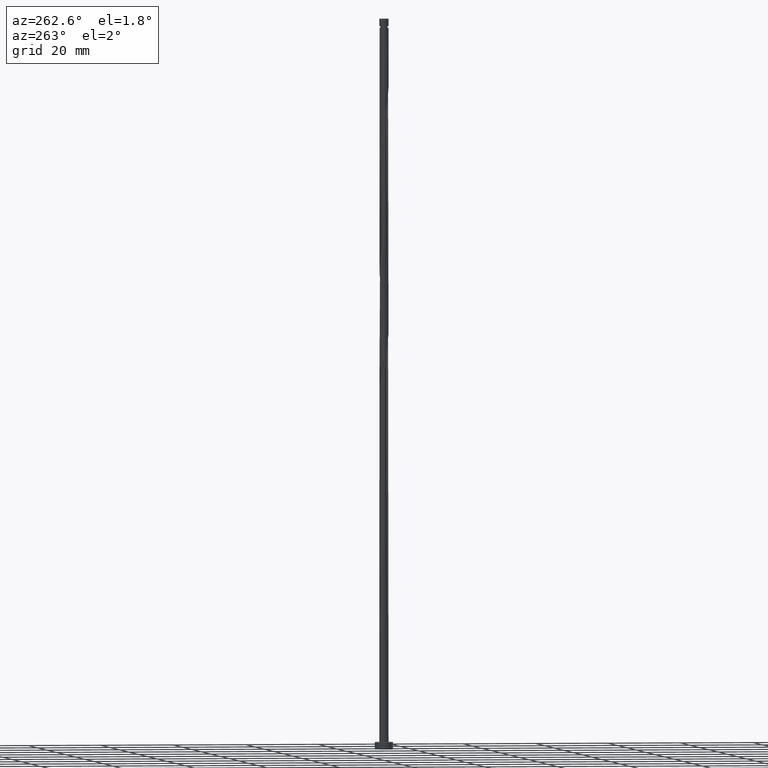
[diagram: clean part render]
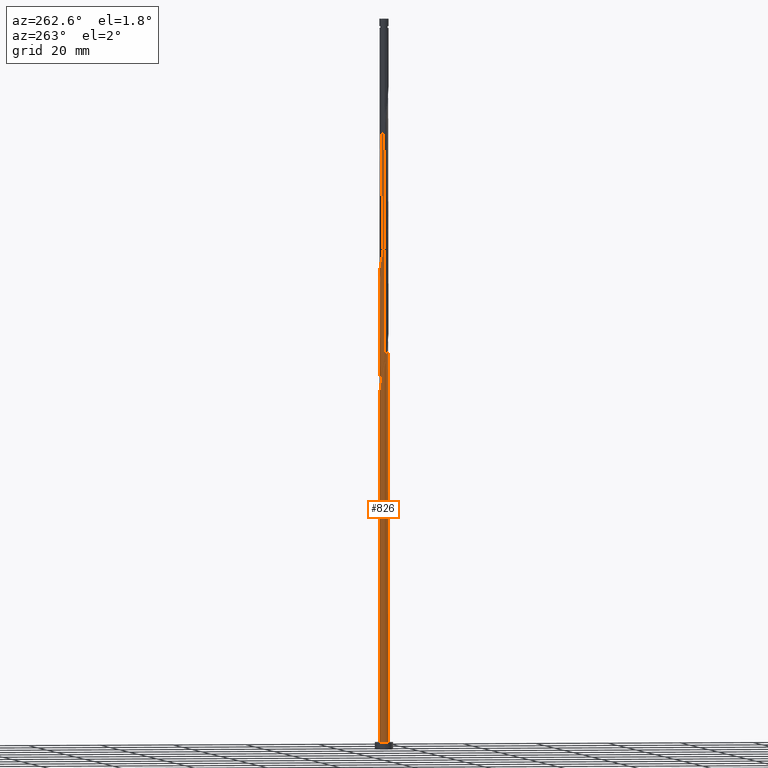
[diagram: same view with one face highlighted and labeled with its STEP entity id]
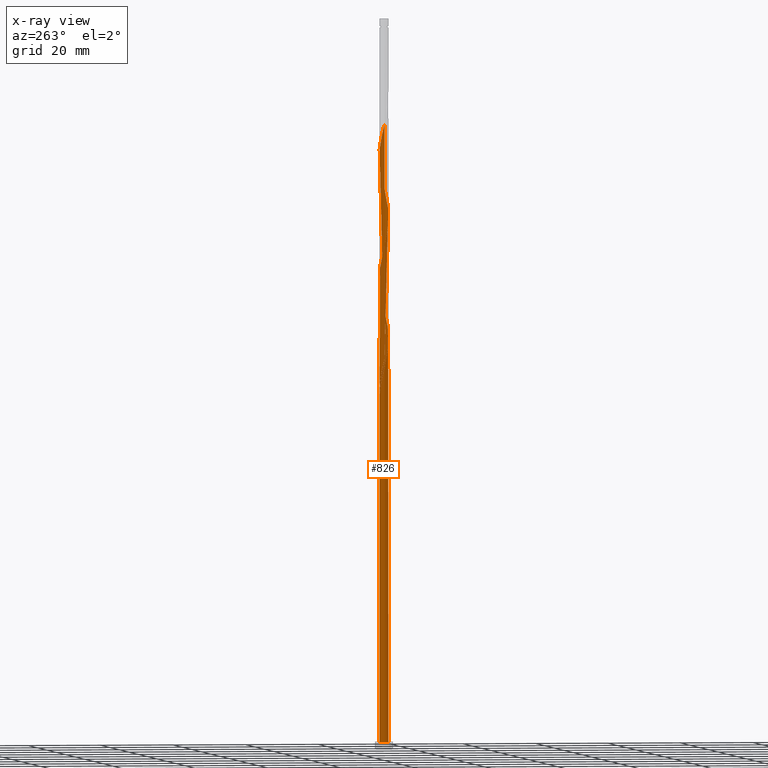
[diagram: x-ray of the same camera — body ghosted, the highlighted face saturated]
A machine part, auxiliary view. The second image highlights one B-rep face of the part: STEP entity #826.
The next image is the same camera in x-ray: the body ghosted, the highlighted face saturated — about 0% of this face is hidden behind the body in this view.
In plain terms, the highlighted cylindrical surface (bore or boss wall) has radius 1.25 mm, axis along (-0, -0, -1).
Its self-contained STEP definition (entity closure, byte-faithful):
#8 = CARTESIAN_POINT ( 'NONE',  ( 0.4100211688212159755, -1.192251854709209358, 148.1710799261301474 ) ) ;
#27 = CARTESIAN_POINT ( 'NONE',  ( -0.9365076899976106928, -0.8279210992451775386, 108.5877465927968046 ) ) ;
#31 = CARTESIAN_POINT ( 'NONE',  ( 0.9365076899976111369, 0.8279210992451770945, 158.5877465927968331 ) ) ;
#41 = VERTEX_POINT ( 'NONE', #743 ) ;
#57 = CARTESIAN_POINT ( 'NONE',  ( 0.2487468592766560183, -1.225000000000001421, 114.1433021483523476 ) ) ;
#69 = CARTESIAN_POINT ( 'NONE',  ( -1.247639561794344987, 0.07678231466697388319, 137.7544132594634902 ) ) ;
#75 = EDGE_CURVE ( 'NONE', #592, #41, #1125, .T. ) ;
#83 = CARTESIAN_POINT ( 'NONE',  ( 0.8275098094766816237, 0.9512146756431649752, 125.9488577039079047 ) ) ;
#91 = CARTESIAN_POINT ( 'NONE',  ( 0.07678231466697464647, 1.247639561794344987, 129.4210799261301474 ) ) ;
#99 = CARTESIAN_POINT ( 'NONE',  ( 1.185254549274266322, -0.3970789007548242155, 119.6988577039079047 ) ) ;
#114 = CARTESIAN_POINT ( 'NONE',  ( -0.3970789007548241600, -1.185254549274266322, 144.6988577039079473 ) ) ;
#120 = CARTESIAN_POINT ( 'NONE',  ( 0.000000000000000000, 0.000000000000000000, 200.0000000000000000 ) ) ;
#129 = CARTESIAN_POINT ( 'NONE',  ( -1.249999999999999334, 0.1256297269074049261, 106.3401091010398005 ) ) ;
#140 = CARTESIAN_POINT ( 'NONE',  ( 1.192251854709209358, 0.4100211688212159200, 156.5044132594634618 ) ) ;
#153 = CARTESIAN_POINT ( 'NONE',  ( -1.132978120250636156, 0.5531206224436039376, 169.0044132594634618 ) ) ;
#161 = CARTESIAN_POINT ( 'NONE',  ( -1.250000000000001332, 0.03842743957209292932, 171.2499051384474740 ) ) ;
#167 = CARTESIAN_POINT ( 'NONE',  ( 0.8275098094766816237, 0.9512146756431649752, 159.2821910372412901 ) ) ;
#174 = CARTESIAN_POINT ( 'NONE',  ( -0.5573243458342028722, 1.118878712613874837, 98.86552437057459031 ) ) ;
#188 =( BOUNDED_CURVE ( )  B_SPLINE_CURVE ( 2, ( #325, #1059, #174, #419, #1426, #1313, #1559, #1483, #216, #463, #1478, #967, #482 ),
 .UNSPECIFIED., .F., .T. ) 
 B_SPLINE_CURVE_WITH_KNOTS ( ( 3, 2, 2, 2, 2, 2, 3 ),
 ( 0.000000000000000000, 0.01041666666666662966, 0.02083333333333337034, 0.03125000000000000000, 0.04166666666666662966, 0.05208333333333336340, 0.05453176698144627382 ),
 .UNSPECIFIED. ) 
 CURVE ( )  GEOMETRIC_REPRESENTATION_ITEM ( )  RATIONAL_B_SPLINE_CURVE ( ( 0.9090909090909538026, 0.9013135103398720593, 0.9090909090909538026, 0.9013135103398720593, 0.9090909090909538026, 0.9013135103398720593, 0.9090909090909538026, 0.9013135103398720593, 0.9090909090909538026, 0.9013135103398720593, 0.9090909090909538026, 0.9072628343904475257, 0.9062941362546741431 ) ) 
 REPRESENTATION_ITEM ( '' )  );
#189 = CARTESIAN_POINT ( 'NONE',  ( 0.7046275228471889918, -1.045505570518540539, 116.2266354816857046 ) ) ;
#194 = ORIENTED_EDGE ( 'NONE', *, *, #1170, .T. ) ;
#198 = CARTESIAN_POINT ( 'NONE',  ( -0.2487468592766558517, 1.225000000000001421, 130.8099688150190616 ) ) ;
#211 = DIRECTION ( 'NONE',  ( -0.000000000000000000, -0.000000000000000000, -1.000000000000000000 ) ) ;
#213 = CARTESIAN_POINT ( 'NONE',  ( 1.192251854709209358, 0.4100211688212159200, 123.1710799261301332 ) ) ;
#216 = CARTESIAN_POINT ( 'NONE',  ( -1.185254549274266322, 0.3970789007548236604, 103.0321910372412617 ) ) ;
#217 = DIRECTION ( 'NONE',  ( 1.000000000000000000, 0.000000000000000000, 0.000000000000000000 ) ) ;
#219 = CARTESIAN_POINT ( 'NONE',  ( -1.257748145290793707, -0.08747254973209589446, 138.4488577039078905 ) ) ;
#224 = CARTESIAN_POINT ( 'NONE',  ( 0.000000000000000000, 0.000000000000000000, 2.000000000000000000 ) ) ;
#229 = CARTESIAN_POINT ( 'NONE',  ( -0.3970789007548227723, 1.185254549274265212, 100.2544132594634760 ) ) ;
#241 = EDGE_CURVE ( 'NONE', #41, #366, #1202, .T. ) ;
#265 = CARTESIAN_POINT ( 'NONE',  ( 0.2487468592766560183, -1.225000000000001421, 147.4766354816857188 ) ) ;
#267 = CARTESIAN_POINT ( 'NONE',  ( -0.08747254973209471485, 1.257748145290793707, 163.4488577039079189 ) ) ;
#274 = CARTESIAN_POINT ( 'NONE',  ( -0.2487468592766558517, 1.225000000000001421, 164.1433021483524044 ) ) ;
#281 = ORIENTED_EDGE ( 'NONE', *, *, #1170, .F. ) ;
#290 = ORIENTED_EDGE ( 'NONE', *, *, #526, .F. ) ;
#295 = CARTESIAN_POINT ( 'NONE',  ( -1.237530978297896489, 0.2410371790660433278, 137.0599688150190332 ) ) ;
#305 = CARTESIAN_POINT ( 'NONE',  ( 1.132978120250635934, -0.5531206224436042707, 119.0044132594634760 ) ) ;
#307 = VECTOR ( 'NONE', #211, 1000.000000000000000 ) ;
#320 = CARTESIAN_POINT ( 'NONE',  ( -0.08747254973209471485, 1.257748145290793707, 130.1155243705746045 ) ) ;
#322 = ORIENTED_EDGE ( 'NONE', *, *, #581, .F. ) ;
#325 = CARTESIAN_POINT ( 'NONE',  ( -0.2487468592766558517, 1.225000000000001421, 97.47663548168569037 ) ) ;
#328 = CARTESIAN_POINT ( 'NONE',  ( 1.237530978297896489, -0.2410371790660440217, 120.3933021483523476 ) ) ;
#338 = CARTESIAN_POINT ( 'NONE',  ( 0.000000000000000000, 0.000000000000000000, 2.000000000000000000 ) ) ;
#352 = CARTESIAN_POINT ( 'NONE',  ( -0.2410371790660427727, 1.237530978297895157, 99.55996881501903317 ) ) ;
#353 = CARTESIAN_POINT ( 'NONE',  ( -0.2487468592766558517, 1.225000000000001421, 97.47663548168569037 ) ) ;
#366 = VERTEX_POINT ( 'NONE', #681 ) ;
#395 = CARTESIAN_POINT ( 'NONE',  ( 1.132978120250635934, -0.5531206224436042707, 152.3377465927968331 ) ) ;
#409 = CARTESIAN_POINT ( 'NONE',  ( -1.237530978297896489, 0.2410371790660433278, 170.3933021483523191 ) ) ;
#419 = CARTESIAN_POINT ( 'NONE',  ( -0.7046275228471896579, 1.045505570518540317, 99.55996881501899054 ) ) ;
#434 = CIRCLE ( 'NONE', #594, 1.250000000000000000 ) ;
#442 = CARTESIAN_POINT ( 'NONE',  ( 1.247639561794344987, -0.07678231466697460483, 121.0877465927968046 ) ) ;
#449 = CARTESIAN_POINT ( 'NONE',  ( -0.8279210992451777607, 0.9365076899976106928, 133.5877465927968331 ) ) ;
#456 = CARTESIAN_POINT ( 'NONE',  ( 0.9512146756431655303, -0.8275098094766810686, 117.6155243705745619 ) ) ;
#461 = EDGE_CURVE ( 'NONE', #1448, #1078, #1388, .T. ) ;
#463 = CARTESIAN_POINT ( 'NONE',  ( -1.237530978297896489, 0.2410371790660433278, 103.7266354816856904 ) ) ;
#464 = DIRECTION ( 'NONE',  ( 0.000000000000000000, 0.000000000000000000, 1.000000000000000000 ) ) ;
#482 = CARTESIAN_POINT ( 'NONE',  ( -1.250000000000001332, -1.551455136025533631E-15, 104.7464021598089943 ) ) ;
#489 = CARTESIAN_POINT ( 'NONE',  ( -1.192251854709207359, 0.4100211688212159200, 105.1155243705745761 ) ) ;
#500 = VERTEX_POINT ( 'NONE', #1079 ) ;
#501 = CARTESIAN_POINT ( 'NONE',  ( 1.257748145290793484, 0.08747254973209488138, 155.1155243705745477 ) ) ;
#526 = EDGE_CURVE ( 'NONE', #1448, #592, #188, .T. ) ;
#527 = CARTESIAN_POINT ( 'NONE',  ( -1.250000000000001554, -0.1256297269074016232, 105.2798285289982232 ) ) ;
#530 = ORIENTED_EDGE ( 'NONE', *, *, #75, .F. ) ;
#531 = CARTESIAN_POINT ( 'NONE',  ( 0.5531206224436043817, 1.132978120250635934, 160.6710799261301474 ) ) ;
#548 = CARTESIAN_POINT ( 'NONE',  ( 0.000000000000000000, 0.000000000000000000, 97.47663548168570458 ) ) ;
#551 = CARTESIAN_POINT ( 'NONE',  ( -1.042096397946901121, 0.6903152159601424476, 134.9766354816856619 ) ) ;
#562 = CARTESIAN_POINT ( 'NONE',  ( -0.6903152159601424476, -1.042096397946901121, 143.3099688150190616 ) ) ;
#571 = CARTESIAN_POINT ( 'NONE',  ( 0.5531206224436043817, 1.132978120250635934, 127.3377465927968188 ) ) ;
#580 = CARTESIAN_POINT ( 'NONE',  ( 0.2410371790660440772, 1.237530978297896489, 128.7266354816856904 ) ) ;
#581 = EDGE_CURVE ( 'NONE', #366, #1078, #1621, .T. ) ;
#592 = VERTEX_POINT ( 'NONE', #1242 ) ;
#594 = AXIS2_PLACEMENT_3D ( 'NONE', #224, #464, #217 ) ;
#603 = CARTESIAN_POINT ( 'NONE',  ( -0.8275098094766792922, 0.9512146756431645311, 102.3377465927967762 ) ) ;
#608 = DIRECTION ( 'NONE',  ( -0.000000000000000000, -0.000000000000000000, -1.000000000000000000 ) ) ;
#613 = CARTESIAN_POINT ( 'NONE',  ( -1.118878712613873283, 0.5573243458342024281, 104.4210799261301474 ) ) ;
#622 = CARTESIAN_POINT ( 'NONE',  ( -1.247639561794344987, 0.07678231466697388319, 171.0877465927968331 ) ) ;
#631 = CARTESIAN_POINT ( 'NONE',  ( 1.247639561794344987, -0.07678231466697460483, 154.4210799261300906 ) ) ;
#637 = CARTESIAN_POINT ( 'NONE',  ( 1.045505570518540983, 0.7046275228471888807, 157.8933021483523476 ) ) ;
#647 = CARTESIAN_POINT ( 'NONE',  ( -1.118878712613874837, -0.5573243458342028722, 107.1988577039079331 ) ) ;
#650 = CARTESIAN_POINT ( 'NONE',  ( 0.5573243458342025392, -1.118878712613875059, 148.8655243705745477 ) ) ;
#661 = VECTOR ( 'NONE', #1192, 1000.000000000000000 ) ;
#681 = CARTESIAN_POINT ( 'NONE',  ( -1.249999999999999556, -1.379486614923916216E-15, 106.8735354702290863 ) ) ;
#692 = DIRECTION ( 'NONE',  ( 0.000000000000000000, -0.000000000000000000, -1.000000000000000000 ) ) ;
#693 = DIRECTION ( 'NONE',  ( 0.000000000000000000, 0.000000000000000000, 1.000000000000000000 ) ) ;
#694 = CARTESIAN_POINT ( 'NONE',  ( 1.042096397946900677, -0.6903152159601426696, 118.3099688150190474 ) ) ;
#695 = ORIENTED_EDGE ( 'NONE', *, *, #1294, .T. ) ;
#697 = AXIS2_PLACEMENT_3D ( 'NONE', #338, #693, #949 ) ;
#705 = CARTESIAN_POINT ( 'NONE',  ( -1.192251854709209358, -0.4100211688212160310, 139.8377465927968046 ) ) ;
#710 = CARTESIAN_POINT ( 'NONE',  ( -0.6903152159601412263, 1.042096397946899788, 101.6433021483523618 ) ) ;
#713 = CARTESIAN_POINT ( 'NONE',  ( -1.118878712613874837, -0.5573243458342028722, 140.5321910372412333 ) ) ;
#719 = CARTESIAN_POINT ( 'NONE',  ( -0.5531206224436029384, 1.132978120250635268, 100.9488577039079047 ) ) ;
#724 = AXIS2_PLACEMENT_3D ( 'NONE', #120, #608, #1123 ) ;
#732 = FACE_OUTER_BOUND ( 'NONE', #1073, .T. ) ;
#743 = CARTESIAN_POINT ( 'NONE',  ( -1.250000000000001110, 6.168436082993083050E-16, 171.4130688264756088 ) ) ;
#768 = CARTESIAN_POINT ( 'NONE',  ( -0.8279210992451777607, 0.9365076899976106928, 166.9210799261301474 ) ) ;
#773 = CARTESIAN_POINT ( 'NONE',  ( -0.9512146756431656414, 0.8275098094766810686, 167.6155243705746045 ) ) ;
#781 = CARTESIAN_POINT ( 'NONE',  ( -0.5573243458342028722, 1.118878712613874837, 165.5321910372412333 ) ) ;
#788 = CARTESIAN_POINT ( 'NONE',  ( 1.185254549274266322, -0.3970789007548242155, 153.0321910372412617 ) ) ;
#812 = CARTESIAN_POINT ( 'NONE',  ( 0.6903152159601425586, 1.042096397946900899, 126.6433021483523760 ) ) ;
#823 = CARTESIAN_POINT ( 'NONE',  ( 0.8279210992451775386, -0.9365076899976109148, 116.9210799261301332 ) ) ;
#826 = ADVANCED_FACE ( 'NONE', ( #732 ), #1248, .T. ) ;
#833 = CARTESIAN_POINT ( 'NONE',  ( -0.9512146756431656414, 0.8275098094766810686, 134.2821910372412333 ) ) ;
#837 = CARTESIAN_POINT ( 'NONE',  ( -0.9365076899976089164, 0.8279210992451766504, 103.0321910372412617 ) ) ;
#840 = CARTESIAN_POINT ( 'NONE',  ( 0.9365076899976111369, 0.8279210992451770945, 125.2544132594634618 ) ) ;
#841 = VERTEX_POINT ( 'NONE', #989 ) ;
#885 = ORIENTED_EDGE ( 'NONE', *, *, #1231, .T. ) ;
#889 = CARTESIAN_POINT ( 'NONE',  ( -0.07678231466697398033, -1.247639561794344987, 146.0877465927968046 ) ) ;
#894 = CARTESIAN_POINT ( 'NONE',  ( 0.2410371790660440772, 1.237530978297896489, 162.0599688150190332 ) ) ;
#900 = CARTESIAN_POINT ( 'NONE',  ( 0.6903152159601425586, 1.042096397946900899, 159.9766354816856904 ) ) ;
#924 = CARTESIAN_POINT ( 'NONE',  ( -0.2410371790660434943, -1.237530978297896489, 112.0599688150190190 ) ) ;
#949 = DIRECTION ( 'NONE',  ( 1.000000000000000000, 0.000000000000000000, 0.000000000000000000 ) ) ;
#952 = CARTESIAN_POINT ( 'NONE',  ( 0.4100211688212159755, -1.192251854709209358, 114.8377465927968188 ) ) ;
#960 = CARTESIAN_POINT ( 'NONE',  ( 1.045505570518540983, 0.7046275228471888807, 124.5599688150190332 ) ) ;
#961 = AXIS2_PLACEMENT_3D ( 'NONE', #548, #692, #1047 ) ;
#967 = CARTESIAN_POINT ( 'NONE',  ( -1.250000000000001554, 0.03842743957209198563, 104.5832384717808310 ) ) ;
#989 = CARTESIAN_POINT ( 'NONE',  ( 1.250000000000000000, 0.000000000000000000, 2.000000000000000000 ) ) ;
#1009 = CARTESIAN_POINT ( 'NONE',  ( -1.250000000000001110, 6.168436082993083050E-16, 171.4130688264756088 ) ) ;
#1025 = CARTESIAN_POINT ( 'NONE',  ( 0.7046275228471889918, -1.045505570518540539, 149.5599688150190048 ) ) ;
#1030 = CARTESIAN_POINT ( 'NONE',  ( -0.7046275228471896579, 1.045505570518540317, 166.2266354816856904 ) ) ;
#1038 = CARTESIAN_POINT ( 'NONE',  ( 1.118878712613875059, 0.5573243458342025392, 157.1988577039079473 ) ) ;
#1047 = DIRECTION ( 'NONE',  ( -1.000000000000000000, 0.000000000000000000, 0.000000000000000000 ) ) ;
#1051 = CARTESIAN_POINT ( 'NONE',  ( -0.5531206224436042707, -1.132978120250636156, 110.6710799261301190 ) ) ;
#1059 = CARTESIAN_POINT ( 'NONE',  ( -0.4100211688212161421, 1.192251854709209136, 98.17107992613013323 ) ) ;
#1061 = CARTESIAN_POINT ( 'NONE',  ( -0.9365076899976106928, -0.8279210992451775386, 141.9210799261301474 ) ) ;
#1070 = CARTESIAN_POINT ( 'NONE',  ( -0.5531206224436042707, -1.132978120250636156, 144.0044132594634618 ) ) ;
#1073 = EDGE_LOOP ( 'NONE', ( #1210, #530, #194, #695, #885, #281, #290, #1325, #322 ) ) ;
#1074 = CARTESIAN_POINT ( 'NONE',  ( 0.2487468592766562681, 1.224999999999999645, 97.47663548168569037 ) ) ;
#1078 = VERTEX_POINT ( 'NONE', #1074 ) ;
#1079 = CARTESIAN_POINT ( 'NONE',  ( -1.250000000000000000, 0.000000000000000000, 2.000000000000000000 ) ) ;
#1081 = CARTESIAN_POINT ( 'NONE',  ( -0.4100211688212161421, 1.192251854709209136, 131.5044132594634618 ) ) ;
#1089 = CARTESIAN_POINT ( 'NONE',  ( 1.225000000000001421, 0.2487468592766559627, 122.4766354816857046 ) ) ;
#1115 = CARTESIAN_POINT ( 'NONE',  ( -0.07678231466697328644, 1.247639561794343432, 98.86552437057456189 ) ) ;
#1123 = DIRECTION ( 'NONE',  ( -1.000000000000000000, 0.000000000000000000, 0.000000000000000000 ) ) ;
#1125 =( BOUNDED_CURVE ( )  B_SPLINE_CURVE ( 2, ( #1286, #527, #1158, #1291, #647, #1165, #27, #1441, #1460, #1051, #1562, #924, #1573, #1429, #57, #952, #1468, #189, #823, #456, #694, #305, #99, #328, #442, #1591, #1089, #213, #1215, #960, #840, #83, #812, #571, #1224, #580, #91, #320, #198, #1081, #1206, #1583, #449, #833, #551, #1194, #1345, #295, #69, #219, #1317, #705, #713, #1330, #1061, #1230, #562, #1070, #114, #1379, #889, #1418, #265, #8, #650, #1025, #1528, #1400, #1410, #395, #788, #1511, #631, #501, #1147, #140, #1038, #637, #31, #167, #900, #531, #1542, #894, #1520, #267, #274, #1295, #781, #1030, #768, #773, #1282, #153, #1155, #409, #622, #161, #1009 ),
 .UNSPECIFIED., .F., .T. ) 
 B_SPLINE_CURVE_WITH_KNOTS ( ( 3, 2, 2, 2, 2, 2, 2, 2, 2, 2, 2, 2, 2, 2, 2, 2, 2, 2, 2, 2, 2, 2, 2, 2, 2, 2, 2, 2, 2, 2, 2, 2, 2, 2, 2, 2, 2, 2, 2, 2, 2, 2, 2, 2, 2, 2, 2, 2, 2, 3 ),
 ( 0.05453176698144627382, 0.06250000000000000000, 0.07291666666666662966, 0.08333333333333337034, 0.09375000000000000000, 0.1041666666666666297, 0.1145833333333333703, 0.1250000000000000000, 0.1354166666666666297, 0.1458333333333333703, 0.1562500000000000000, 0.1666666666666666297, 0.1770833333333333703, 0.1875000000000000000, 0.1979166666666666297, 0.2083333333333333703, 0.2187500000000000000, 0.2291666666666666297, 0.2395833333333333703, 0.2500000000000000000, 0.2604166666666666297, 0.2708333333333333703, 0.2812500000000000000, 0.2916666666666666297, 0.3020833333333333703, 0.3125000000000000000, 0.3229166666666666297, 0.3333333333333333703, 0.3437500000000000000, 0.3541666666666666297, 0.3645833333333333703, 0.3750000000000000000, 0.3854166666666666297, 0.3958333333333333703, 0.4062500000000000000, 0.4166666666666666297, 0.4270833333333333703, 0.4375000000000000000, 0.4479166666666666297, 0.4583333333333333703, 0.4687500000000000000, 0.4791666666666666297, 0.4895833333333333703, 0.5000000000000000000, 0.5104166666666667407, 0.5208333333333332593, 0.5312500000000000000, 0.5416666666666667407, 0.5520833333333332593, 0.5545317669814461281 ),
 .UNSPECIFIED. ) 
 CURVE ( )  GEOMETRIC_REPRESENTATION_ITEM ( )  RATIONAL_B_SPLINE_CURVE ( ( 0.9062941362546741431, 0.9031415850403783363, 0.9090909090909538026, 0.9013135103398720593, 0.9090909090909538026, 0.9013135103398720593, 0.9090909090909538026, 0.9013135103398720593, 0.9090909090909538026, 0.9013135103398720593, 0.9090909090909538026, 0.9013135103398720593, 0.9090909090909538026, 0.9013135103398720593, 0.9090909090909538026, 0.9013135103398720593, 0.9090909090909538026, 0.9013135103398720593, 0.9090909090909538026, 0.9013135103398720593, 0.9090909090909538026, 0.9013135103398720593, 0.9090909090909538026, 0.9013135103398720593, 0.9090909090909538026, 0.9013135103398720593, 0.9090909090909538026, 0.9013135103398720593, 0.9090909090909538026, 0.9013135103398720593, 0.9090909090909538026, 0.9013135103398720593, 0.9090909090909538026, 0.9013135103398720593, 0.9090909090909538026, 0.9013135103398720593, 0.9090909090909538026, 0.9013135103398720593, 0.9090909090909538026, 0.9013135103398720593, 0.9090909090909538026, 0.9013135103398720593, 0.9090909090909538026, 0.9013135103398720593, 0.9090909090909538026, 0.9013135103398720593, 0.9090909090909538026, 0.9013135103398720593, 0.9090909090909538026, 0.9013135103398720593, 0.9090909090909538026, 0.9013135103398720593, 0.9090909090909538026, 0.9013135103398720593, 0.9090909090909538026, 0.9013135103398720593, 0.9090909090909538026, 0.9013135103398720593, 0.9090909090909538026, 0.9013135103398720593, 0.9090909090909538026, 0.9013135103398720593, 0.9090909090909538026, 0.9013135103398720593, 0.9090909090909538026, 0.9013135103398720593, 0.9090909090909538026, 0.9013135103398720593, 0.9090909090909538026, 0.9013135103398720593, 0.9090909090909538026, 0.9013135103398720593, 0.9090909090909538026, 0.9013135103398720593, 0.9090909090909538026, 0.9013135103398720593, 0.9090909090909538026, 0.9013135103398720593, 0.9090909090909538026, 0.9013135103398720593, 0.9090909090909538026, 0.9013135103398720593, 0.9090909090909538026, 0.9013135103398720593, 0.9090909090909538026, 0.9013135103398720593, 0.9090909090909538026, 0.9013135103398720593, 0.9090909090909538026, 0.9013135103398720593, 0.9090909090909538026, 0.9013135103398720593, 0.9090909090909538026, 0.9013135103398720593, 0.9090909090909538026, 0.9013135103398720593, 0.9090909090909538026, 0.9072628343904476367, 0.9062941362546742541 ) ) 
 REPRESENTATION_ITEM ( '' )  );
#1147 = CARTESIAN_POINT ( 'NONE',  ( 1.225000000000001421, 0.2487468592766559627, 155.8099688150190048 ) ) ;
#1155 = CARTESIAN_POINT ( 'NONE',  ( -1.185254549274266322, 0.3970789007548236604, 169.6988577039079473 ) ) ;
#1158 = CARTESIAN_POINT ( 'NONE',  ( -1.225000000000001421, -0.2487468592766561293, 105.8099688150190474 ) ) ;
#1165 = CARTESIAN_POINT ( 'NONE',  ( -1.045505570518540539, -0.7046275228471895469, 107.8933021483523476 ) ) ;
#1170 = EDGE_CURVE ( 'NONE', #592, #500, #1543, .T. ) ;
#1192 = DIRECTION ( 'NONE',  ( -0.000000000000000000, -0.000000000000000000, -1.000000000000000000 ) ) ;
#1194 = CARTESIAN_POINT ( 'NONE',  ( -1.132978120250636156, 0.5531206224436039376, 135.6710799261301474 ) ) ;
#1202 = LINE ( 'NONE', #1449, #307 ) ;
#1206 = CARTESIAN_POINT ( 'NONE',  ( -0.5573243458342028722, 1.118878712613874837, 132.1988577039079473 ) ) ;
#1210 = ORIENTED_EDGE ( 'NONE', *, *, #241, .F. ) ;
#1215 = CARTESIAN_POINT ( 'NONE',  ( 1.118878712613875059, 0.5573243458342025392, 123.8655243705745903 ) ) ;
#1224 = CARTESIAN_POINT ( 'NONE',  ( 0.3970789007548242155, 1.185254549274266322, 128.0321910372412617 ) ) ;
#1230 = CARTESIAN_POINT ( 'NONE',  ( -0.8275098094766810686, -0.9512146756431655303, 142.6155243705745761 ) ) ;
#1231 = EDGE_CURVE ( 'NONE', #841, #500, #1596, .T. ) ;
#1242 = CARTESIAN_POINT ( 'NONE',  ( -1.250000000000001332, -1.551455136025533631E-15, 104.7464021598089943 ) ) ;
#1248 = CYLINDRICAL_SURFACE ( 'NONE', #724, 1.250000000000000000 ) ;
#1282 = CARTESIAN_POINT ( 'NONE',  ( -1.042096397946901121, 0.6903152159601424476, 168.3099688150190048 ) ) ;
#1286 = CARTESIAN_POINT ( 'NONE',  ( -1.250000000000001332, -1.551455136025533631E-15, 104.7464021598089943 ) ) ;
#1291 = CARTESIAN_POINT ( 'NONE',  ( -1.192251854709209358, -0.4100211688212160310, 106.5044132594634618 ) ) ;
#1294 = EDGE_CURVE ( 'NONE', #500, #841, #434, .T. ) ;
#1295 = CARTESIAN_POINT ( 'NONE',  ( -0.4100211688212161421, 1.192251854709209136, 164.8377465927967762 ) ) ;
#1313 = CARTESIAN_POINT ( 'NONE',  ( -0.9512146756431656414, 0.8275098094766810686, 100.9488577039079189 ) ) ;
#1317 = CARTESIAN_POINT ( 'NONE',  ( -1.225000000000001421, -0.2487468592766561293, 139.1433021483523476 ) ) ;
#1325 = ORIENTED_EDGE ( 'NONE', *, *, #461, .T. ) ;
#1330 = CARTESIAN_POINT ( 'NONE',  ( -1.045505570518540539, -0.7046275228471895469, 141.2266354816856904 ) ) ;
#1345 = CARTESIAN_POINT ( 'NONE',  ( -1.185254549274266322, 0.3970789007548236604, 136.3655243705745477 ) ) ;
#1350 = CARTESIAN_POINT ( 'NONE',  ( -1.224999999999999645, 0.2487468592766559627, 105.8099688150190332 ) ) ;
#1358 = CARTESIAN_POINT ( 'NONE',  ( -1.249999999999999556, -1.379486614923916019E-15, 106.8735354702290863 ) ) ;
#1363 = CARTESIAN_POINT ( 'NONE',  ( 0.08747254973209608875, 1.257748145290791930, 98.17107992613010481 ) ) ;
#1379 = CARTESIAN_POINT ( 'NONE',  ( -0.2410371790660434943, -1.237530978297896489, 145.3933021483523760 ) ) ;
#1388 = CIRCLE ( 'NONE', #961, 1.250000000000000000 ) ;
#1400 = CARTESIAN_POINT ( 'NONE',  ( 0.9512146756431655303, -0.8275098094766810686, 150.9488577039078905 ) ) ;
#1410 = CARTESIAN_POINT ( 'NONE',  ( 1.042096397946900677, -0.6903152159601426696, 151.6433021483523760 ) ) ;
#1418 = CARTESIAN_POINT ( 'NONE',  ( 0.08747254973209554751, -1.257748145290793484, 146.7821910372412333 ) ) ;
#1426 = CARTESIAN_POINT ( 'NONE',  ( -0.8279210992451777607, 0.9365076899976106928, 100.2544132594634760 ) ) ;
#1429 = CARTESIAN_POINT ( 'NONE',  ( 0.08747254973209554751, -1.257748145290793484, 113.4488577039079047 ) ) ;
#1437 = CARTESIAN_POINT ( 'NONE',  ( -1.250000000000000000, 0.000000000000000000, 200.0000000000000000 ) ) ;
#1441 = CARTESIAN_POINT ( 'NONE',  ( -0.8275098094766810686, -0.9512146756431655303, 109.2821910372412333 ) ) ;
#1448 = VERTEX_POINT ( 'NONE', #353 ) ;
#1449 = CARTESIAN_POINT ( 'NONE',  ( -1.250000000000000000, 0.000000000000000000, 200.0000000000000000 ) ) ;
#1460 = CARTESIAN_POINT ( 'NONE',  ( -0.6903152159601424476, -1.042096397946901121, 109.9766354816856904 ) ) ;
#1468 = CARTESIAN_POINT ( 'NONE',  ( 0.5573243458342025392, -1.118878712613875059, 115.5321910372412617 ) ) ;
#1472 = CARTESIAN_POINT ( 'NONE',  ( 0.2487468592766562681, 1.224999999999999645, 97.47663548168570458 ) ) ;
#1478 = CARTESIAN_POINT ( 'NONE',  ( -1.247639561794344987, 0.07678231466697388319, 104.4210799261301332 ) ) ;
#1483 = CARTESIAN_POINT ( 'NONE',  ( -1.132978120250636156, 0.5531206224436039376, 102.3377465927968046 ) ) ;
#1511 = CARTESIAN_POINT ( 'NONE',  ( 1.237530978297896489, -0.2410371790660440217, 153.7266354816856904 ) ) ;
#1520 = CARTESIAN_POINT ( 'NONE',  ( 0.07678231466697464647, 1.247639561794344987, 162.7544132594634618 ) ) ;
#1528 = CARTESIAN_POINT ( 'NONE',  ( 0.8279210992451775386, -0.9365076899976109148, 150.2544132594634902 ) ) ;
#1542 = CARTESIAN_POINT ( 'NONE',  ( 0.3970789007548242155, 1.185254549274266322, 161.3655243705745761 ) ) ;
#1543 = LINE ( 'NONE', #1437, #661 ) ;
#1559 = CARTESIAN_POINT ( 'NONE',  ( -1.042096397946901121, 0.6903152159601424476, 101.6433021483523618 ) ) ;
#1562 = CARTESIAN_POINT ( 'NONE',  ( -0.3970789007548241600, -1.185254549274266322, 111.3655243705745619 ) ) ;
#1573 = CARTESIAN_POINT ( 'NONE',  ( -0.07678231466697398033, -1.247639561794344987, 112.7544132594634760 ) ) ;
#1583 = CARTESIAN_POINT ( 'NONE',  ( -0.7046275228471896579, 1.045505570518540317, 132.8933021483523760 ) ) ;
#1591 = CARTESIAN_POINT ( 'NONE',  ( 1.257748145290793484, 0.08747254973209488138, 121.7821910372412475 ) ) ;
#1596 = CIRCLE ( 'NONE', #697, 1.250000000000000000 ) ;
#1601 = CARTESIAN_POINT ( 'NONE',  ( -1.045505570518538985, 0.7046275228471891028, 103.7266354816856762 ) ) ;
#1621 =( BOUNDED_CURVE ( )  B_SPLINE_CURVE ( 2, ( #1358, #129, #1350, #489, #613, #1601, #837, #603, #710, #719, #229, #352, #1115, #1363, #1472 ),
 .UNSPECIFIED., .F., .T. ) 
 B_SPLINE_CURVE_WITH_KNOTS ( ( 3, 2, 2, 2, 2, 2, 2, 3 ),
 ( 0.9295317669814464612, 0.9375000000000000000, 0.9479166666666666297, 0.9583333333333333703, 0.9687500000000000000, 0.9791666666666666297, 0.9895833333333333703, 1.000000000000000000 ),
 .UNSPECIFIED. ) 
 CURVE ( )  GEOMETRIC_REPRESENTATION_ITEM ( )  RATIONAL_B_SPLINE_CURVE ( ( 0.9062941362546682589, 0.9031415850403727852, 0.9090909090909482515, 0.9013135103398663972, 0.9090909090909482515, 0.9013135103398663972, 0.9090909090909482515, 0.9013135103398663972, 0.9090909090909482515, 0.9013135103398663972, 0.9090909090909482515, 0.9013135103398663972, 0.9090909090909482515, 0.9013135103398663972, 0.9090909090909482515 ) ) 
 REPRESENTATION_ITEM ( '' )  );